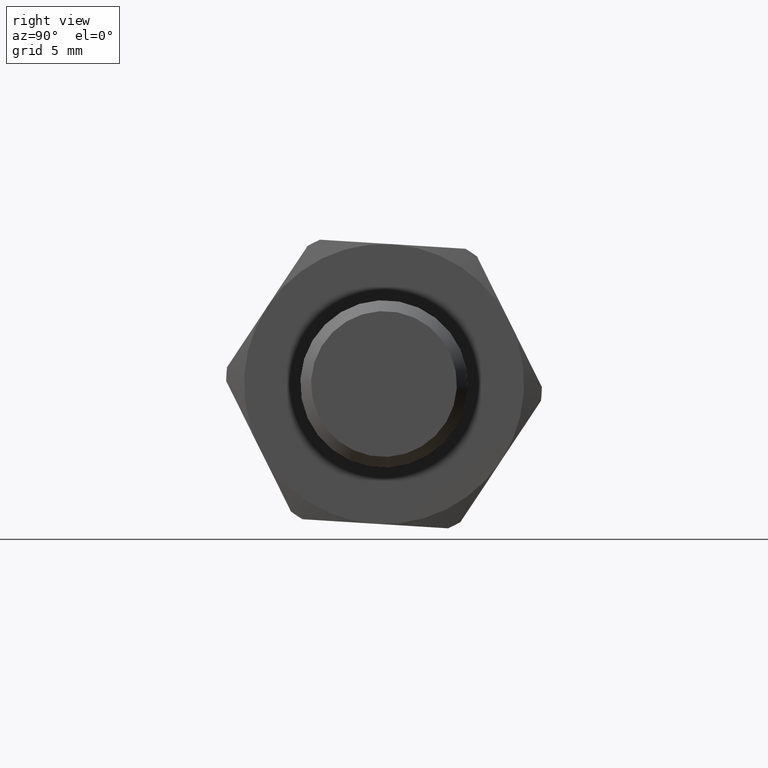
[diagram: clean part render]
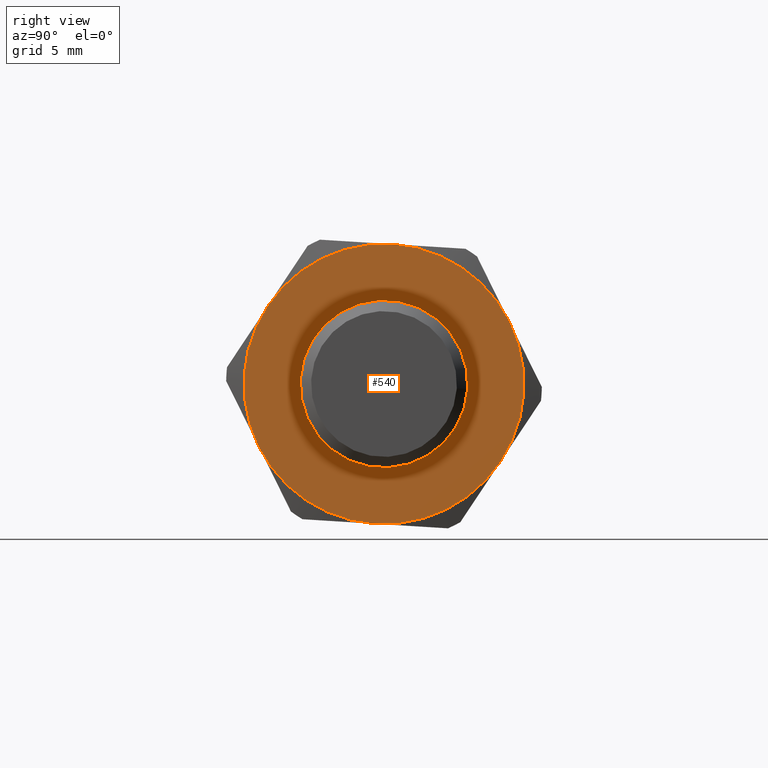
[diagram: same view with one face highlighted and labeled with its STEP entity id]
A machine part, right view. The second image highlights one B-rep face of the part: STEP entity #540.
In plain terms, the highlighted planar face has unit normal (1, 0, 0).
Its self-contained STEP definition (entity closure, byte-faithful):
#437=CARTESIAN_POINT('',(34.600000000000016,9.164068522884829,-6.084393815974726));
#438=VERTEX_POINT('',#437);
#453=CARTESIAN_POINT('',(34.600000000000016,9.851273872705470,4.894119234852232));
#454=VERTEX_POINT('',#453);
#468=CARTESIAN_POINT('',(34.600000000000016,0.0,0.0));
#469=DIRECTION('',(-1.0,0.0,0.0));
#470=DIRECTION('',(0.0,0.998046640984269,-0.062473213620059));
#471=AXIS2_PLACEMENT_3D('',#468,#469,#470);
#472=CIRCLE('',#471,11.000000000000002);
#473=EDGE_CURVE('',#454,#438,#472,.T.);
#478=CARTESIAN_POINT('',(34.600000000000016,8.772081439270988,-0.549092692810103));
#479=DIRECTION('',(1.0,0.0,0.0));
#480=DIRECTION('',(0.0,-0.062473213620059,-0.998046640984269));
#481=AXIS2_PLACEMENT_3D('',#478,#479,#480);
#482=PLANE('',#481);
#483=CARTESIAN_POINT('',(34.600000000000016,-0.687205349820648,-10.978513050826962));
#484=VERTEX_POINT('',#483);
#485=CARTESIAN_POINT('',(34.600000000000016,-9.851273872705471,-4.894119234852229));
#486=VERTEX_POINT('',#485);
#487=CARTESIAN_POINT('',(34.600000000000016,0.0,0.0));
#488=DIRECTION('',(-1.0,0.0,0.0));
#489=DIRECTION('',(0.0,0.998046640984269,-0.062473213620059));
#490=AXIS2_PLACEMENT_3D('',#487,#488,#489);
#491=CIRCLE('',#490,11.000000000000002);
#492=EDGE_CURVE('',#484,#486,#491,.T.);
#493=ORIENTED_EDGE('',*,*,#492,.F.);
#494=CARTESIAN_POINT('',(34.600000000000016,0.0,0.0));
#495=DIRECTION('',(-1.0,0.0,0.0));
#496=DIRECTION('',(0.0,0.998046640984269,-0.062473213620059));
#497=AXIS2_PLACEMENT_3D('',#494,#495,#496);
#498=CIRCLE('',#497,11.000000000000002);
#499=EDGE_CURVE('',#438,#484,#498,.T.);
#500=ORIENTED_EDGE('',*,*,#499,.F.);
#501=ORIENTED_EDGE('',*,*,#473,.F.);
#502=CARTESIAN_POINT('',(34.600000000000016,0.687205349820646,10.978513050826962));
#503=VERTEX_POINT('',#502);
#504=CARTESIAN_POINT('',(34.600000000000016,0.0,0.0));
#505=DIRECTION('',(-1.0,0.0,0.0));
#506=DIRECTION('',(0.0,0.998046640984269,-0.062473213620059));
#507=AXIS2_PLACEMENT_3D('',#504,#505,#506);
#508=CIRCLE('',#507,11.000000000000002);
#509=EDGE_CURVE('',#503,#454,#508,.T.);
#510=ORIENTED_EDGE('',*,*,#509,.F.);
#511=CARTESIAN_POINT('',(34.600000000000016,-9.164068522884826,6.084393815974732));
#512=VERTEX_POINT('',#511);
#513=CARTESIAN_POINT('',(34.600000000000016,0.0,0.0));
#514=DIRECTION('',(-1.0,0.0,0.0));
#515=DIRECTION('',(0.0,0.998046640984269,-0.062473213620059));
#516=AXIS2_PLACEMENT_3D('',#513,#514,#515);
#517=CIRCLE('',#516,11.000000000000002);
#518=EDGE_CURVE('',#512,#503,#517,.T.);
#519=ORIENTED_EDGE('',*,*,#518,.F.);
#520=CARTESIAN_POINT('',(34.600000000000016,0.0,0.0));
#521=DIRECTION('',(-1.0,0.0,0.0));
#522=DIRECTION('',(0.0,0.998046640984269,-0.062473213620059));
#523=AXIS2_PLACEMENT_3D('',#520,#521,#522);
#524=CIRCLE('',#523,11.000000000000002);
#525=EDGE_CURVE('',#486,#512,#524,.T.);
#526=ORIENTED_EDGE('',*,*,#525,.F.);
#527=EDGE_LOOP('',(#493,#500,#501,#510,#519,#526));
#528=FACE_OUTER_BOUND('',#527,.T.);
#529=CARTESIAN_POINT('',(34.600000000000016,6.565649827715014,-0.410980035799558));
#530=VERTEX_POINT('',#529);
#531=CARTESIAN_POINT('',(34.600000000000016,0.0,0.0));
#532=DIRECTION('',(-1.000000000000000,0.0,0.0));
#533=DIRECTION('',(0.0,0.998046640984269,-0.062473213620059));
#534=AXIS2_PLACEMENT_3D('',#531,#532,#533);
#535=CIRCLE('',#534,6.578500000000000);
#536=EDGE_CURVE('',#530,#530,#535,.T.);
#537=ORIENTED_EDGE('',*,*,#536,.T.);
#538=EDGE_LOOP('',(#537));
#539=FACE_BOUND('',#538,.T.);
#540=ADVANCED_FACE('',(#528,#539),#482,.T.);